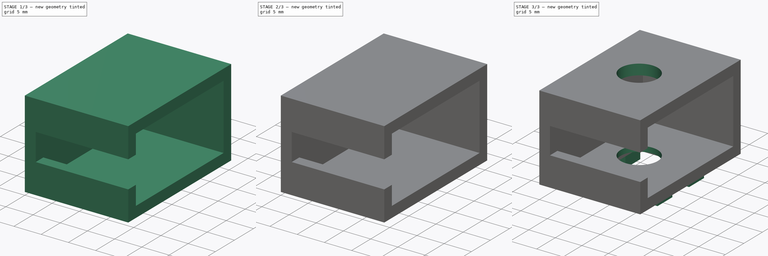
[diagram: build sequence overview — one tinted view per stage of 3, left to right]
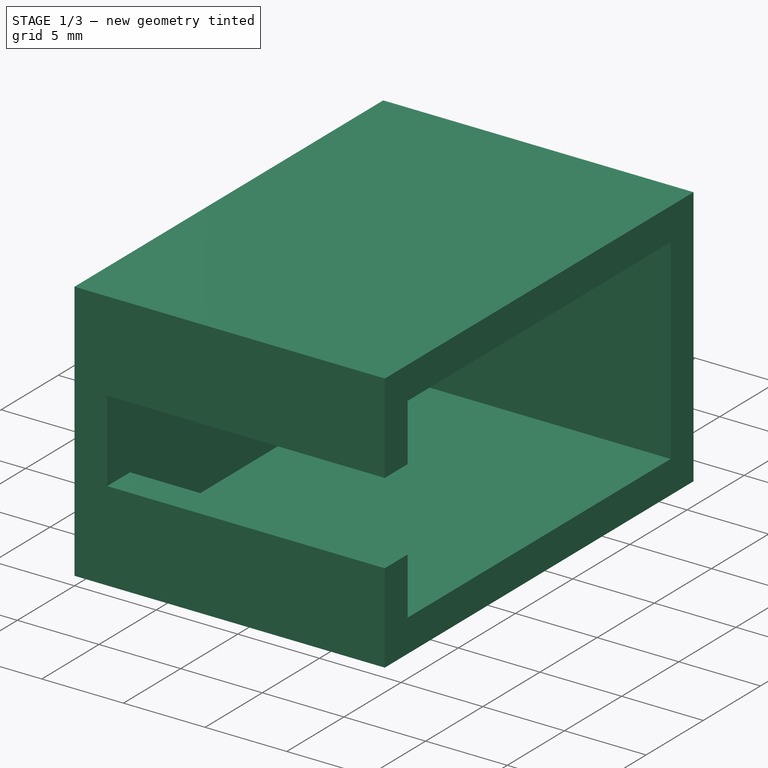
[diagram: stage 1 of 3 — iso view after this stage's code; geometry added in this stage tinted green]
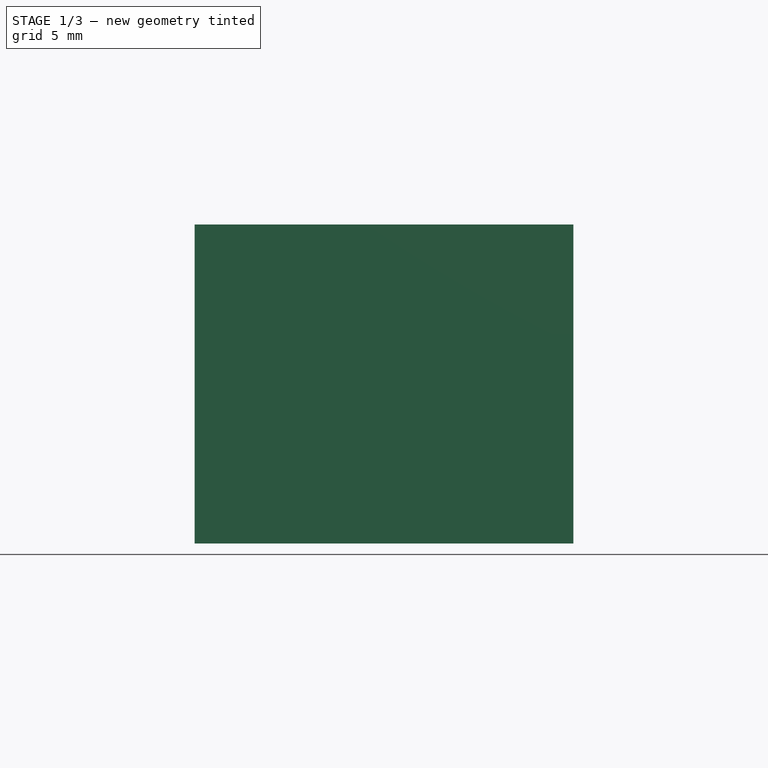
[diagram: stage 1 of 3 — front view after this stage's code; geometry added in this stage tinted green]
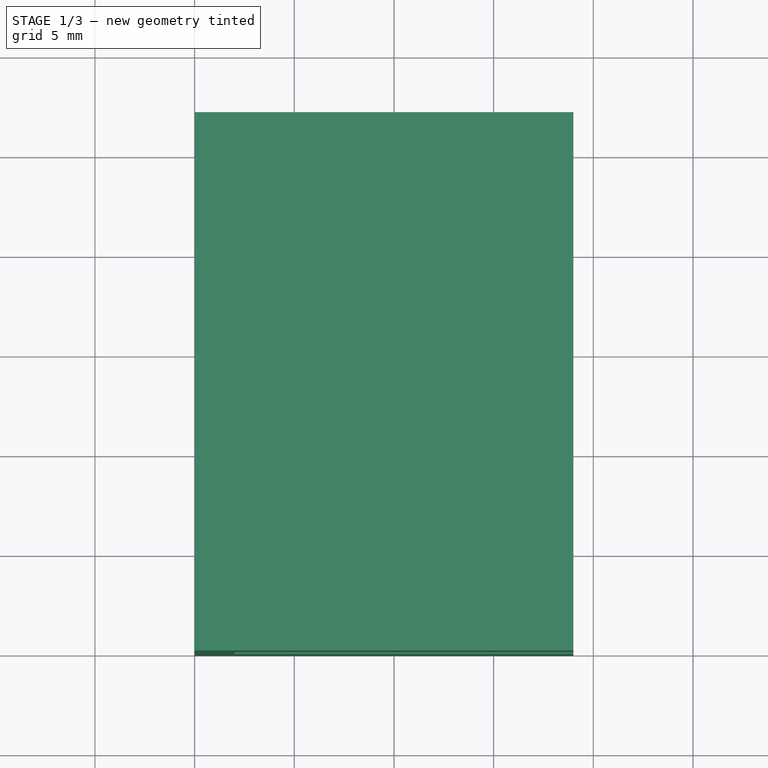
[diagram: stage 1 of 3 — top view after this stage's code; geometry added in this stage tinted green]
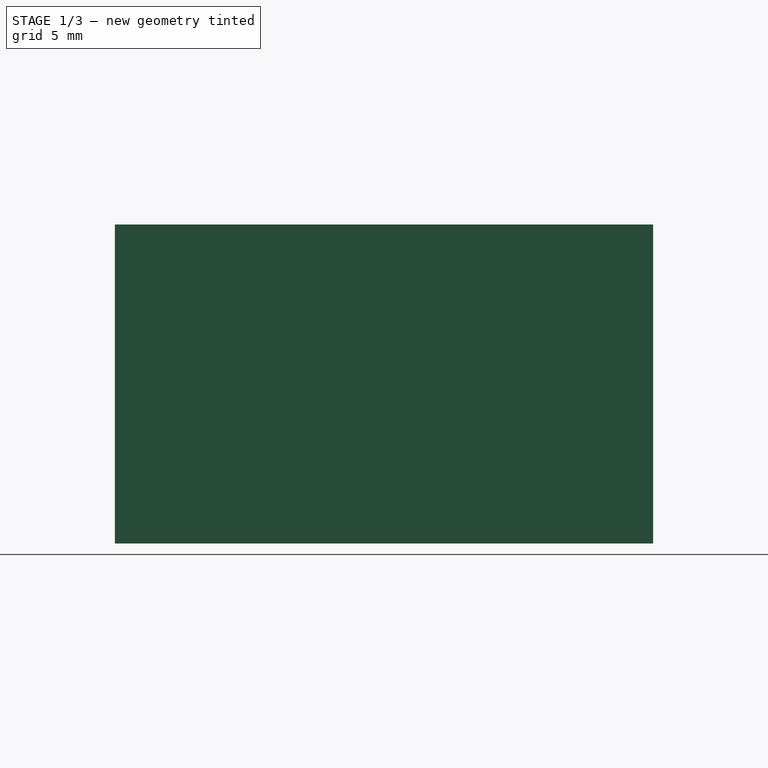
[diagram: stage 1 of 3 — right view after this stage's code; geometry added in this stage tinted green]
FCSTD DOCUMENT  (FreeCAD 0.21R33771 (Git))
Label: BeaterServoMount
License: Creative Commons Attribution-NonCommercial 4.0
LicenseURL: https://creativecommons.org/licenses/by-nc/4.0/
objects: Sketcher::SketchObject×5, PartDesign::Pocket×3, PartDesign::Pad×2, PartDesign::Body×1
note: 16 computed .brp shape members not serialized (recipe doc carries the construction recipe); baked Part::Feature solids carry a one-line shape summary decoded from their .brp

FEATURE [Sketcher::SketchObject] Sketch
  FullyConstrained = true
  MapMode = 5
  Support = -> [XY_Plane]
  sketch-geometry (4):
    g0: LineSegment StartX=0 StartY=0 StartZ=0 EndX=19 EndY=0 EndZ=0
    g1: LineSegment StartX=19 StartY=0 StartZ=0 EndX=19 EndY=27 EndZ=0
    g2: LineSegment StartX=19 StartY=27 StartZ=0 EndX=0 EndY=27 EndZ=0
    g3: LineSegment StartX=0 StartY=27 StartZ=0 EndX=0 EndY=0 EndZ=0
  constraints (11):
    c: Coincident(g0,g1)
    c: Coincident(g1,g2)
    c: Coincident(g2,g3)
    c: Coincident(g3,g0)
    c: Horizontal(g0)
    c: Horizontal(g2)
    c: Vertical(g1)
    c: Vertical(g3)
    c: Coincident(g0,g-1)
    c: DistanceX(g2,g2) = 19
    c: DistanceY(g3,g3) = 27
FEATURE [PartDesign::Pad] Pad
  Direction = (0,0,1)
  Length = 16
  Length2 = 10
  Profile = -> Sketch
  ReferenceAxis = -> Sketch [N_Axis]
  Type = 0
FEATURE [Sketcher::SketchObject] Sketch001
  FullyConstrained = true
  MapMode = 5
  Placement = pos=(19,0,0) rot=(0.57735,0.57735,0.57735;2.0944rad)
  Support = -> [Pad]
  sketch-geometry (8):
    g0: LineSegment StartX=0 StartY=10.5 StartZ=0 EndX=2 EndY=10.5 EndZ=0
    g1: LineSegment StartX=2 StartY=10.5 StartZ=0 EndX=2 EndY=14 EndZ=0
    g2: LineSegment StartX=2 StartY=14 StartZ=0 EndX=25 EndY=14 EndZ=0
    g3: LineSegment StartX=25 StartY=14 StartZ=0 EndX=25 EndY=2 EndZ=0
    g4: LineSegment StartX=25 StartY=2 StartZ=0 EndX=2 EndY=2 EndZ=0
    g5: LineSegment StartX=2 StartY=2 StartZ=0 EndX=2 EndY=5.5 EndZ=0
    g6: LineSegment StartX=2 StartY=5.5 StartZ=0 EndX=0 EndY=5.5 EndZ=0
    g7: LineSegment StartX=0 StartY=5.5 StartZ=0 EndX=0 EndY=10.5 EndZ=0
  constraints (24):
    c: PointOnObject(g0,g-2)
    c: Horizontal(g0)
    c: Coincident(g0,g1)
    c: Vertical(g1)
    c: Coincident(g1,g2)
    c: Horizontal(g2)
    c: Coincident(g2,g3)
    c: Vertical(g3)
    c: Coincident(g3,g4)
    c: Horizontal(g4)
    c: Coincident(g4,g5)
    c: Vertical(g5)
    c: Coincident(g5,g6)
    c: PointOnObject(g6,g-2)
    c: Coincident(g6,g7)
    c: Coincident(g7,g0)
    c: Horizontal(g6)
    c: DistanceX(g2,g2) = 23
    c: DistanceX(g0,g0) = 2
    c: DistanceX(g6,g6) = 2
    c: DistanceY(g3,g3) = 12
    c: DistanceY(g-1,g4) = 2
    c: DistanceY(g6,g0) = 5
    c: Equal(g1,g5)
FEATURE [PartDesign::Pocket] Pocket
  BaseFeature = -> Pad
  Direction = (-1,0,0)
  Length = 17
  Length2 = 5
  Profile = -> Sketch001
  ReferenceAxis = -> Sketch001 [N_Axis]
  Type = 0
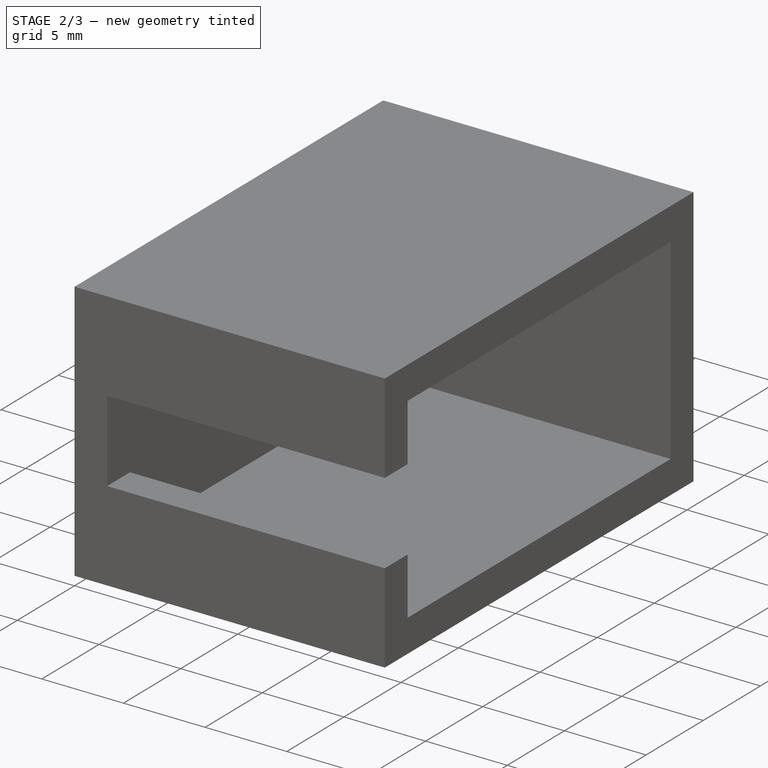
[diagram: stage 2 of 3 — iso view after this stage's code; geometry added in this stage tinted green]
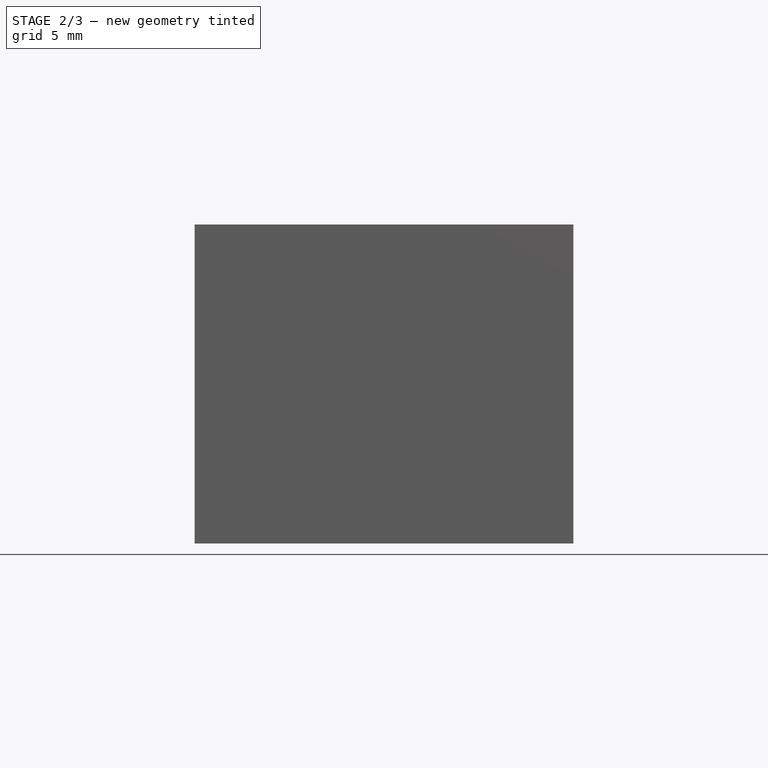
[diagram: stage 2 of 3 — front view after this stage's code; geometry added in this stage tinted green]
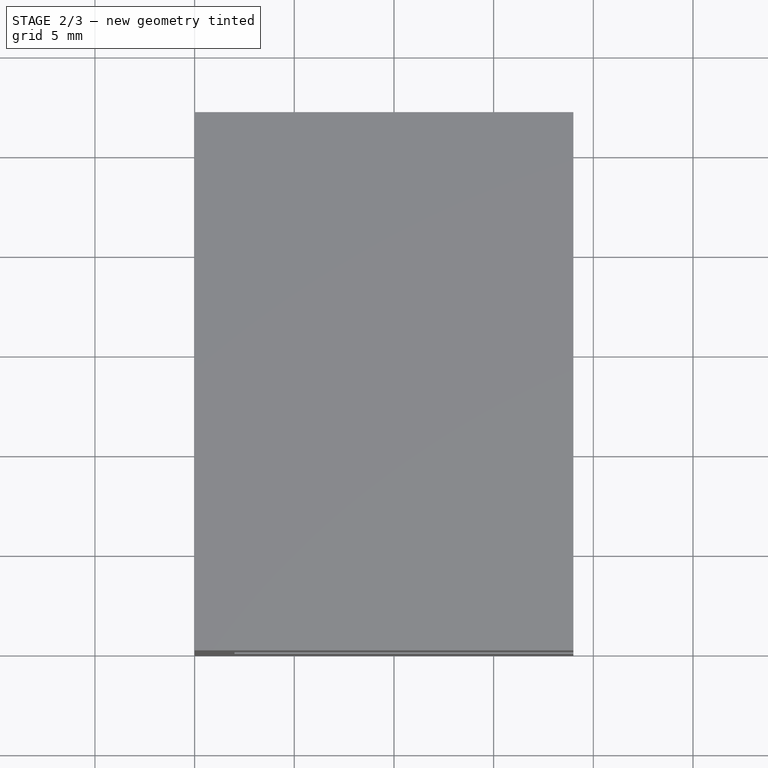
[diagram: stage 2 of 3 — top view after this stage's code; geometry added in this stage tinted green]
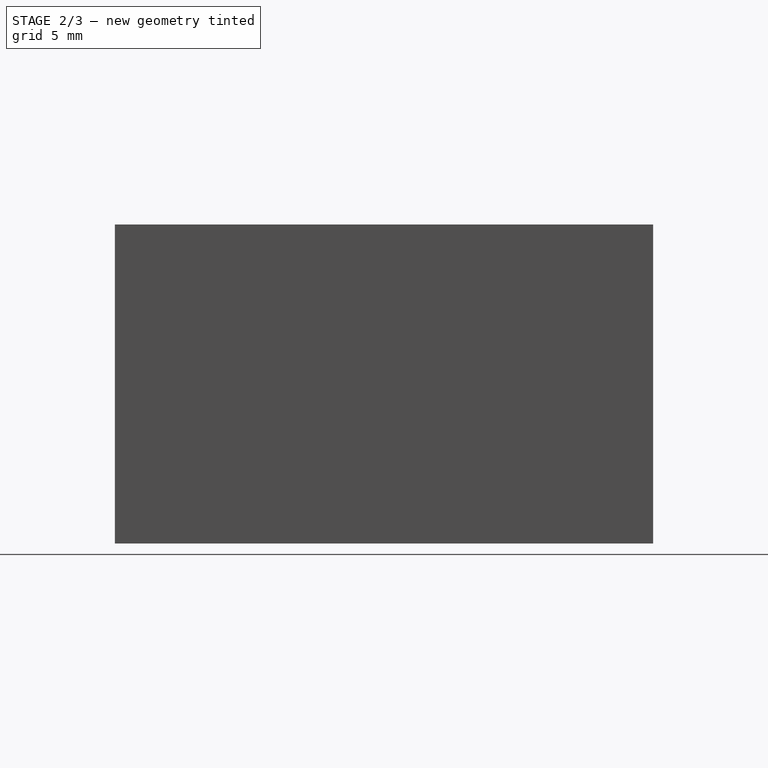
[diagram: stage 2 of 3 — right view after this stage's code; geometry added in this stage tinted green]
FEATURE [Sketcher::SketchObject] Sketch002
  FullyConstrained = true
  MapMode = 5
  Placement = pos=(0,0,0) rot=(1,0,0;3.14159rad)
  Support = -> [Pocket]
  sketch-geometry (4):
    g0: LineSegment StartX=5 StartY=-9 StartZ=0 EndX=13 EndY=-9 EndZ=0
    g1: LineSegment StartX=13 StartY=-9 StartZ=0 EndX=13 EndY=-19 EndZ=0
    g2: LineSegment StartX=13 StartY=-19 StartZ=0 EndX=5 EndY=-19 EndZ=0
    g3: LineSegment StartX=5 StartY=-19 StartZ=0 EndX=5 EndY=-9 EndZ=0
  constraints (12):
    c: Coincident(g0,g1)
    c: Coincident(g1,g2)
    c: Coincident(g2,g3)
    c: Coincident(g3,g0)
    c: Horizontal(g0)
    c: Horizontal(g2)
    c: Vertical(g1)
    c: Vertical(g3)
    c: DistanceX(g2,g2) = 8
    c: DistanceY(g3,g3) = 10
    c: DistanceX(g-1,g0) = 5
    c: DistanceY(g0,g-1) = 9
FEATURE [PartDesign::Pocket] Pocket001
  BaseFeature = -> Pocket
  Direction = (0,0,1)
  Length = 1
  Length2 = 5
  Profile = -> Sketch002
  ReferenceAxis = -> Sketch002 [N_Axis]
  Type = 0
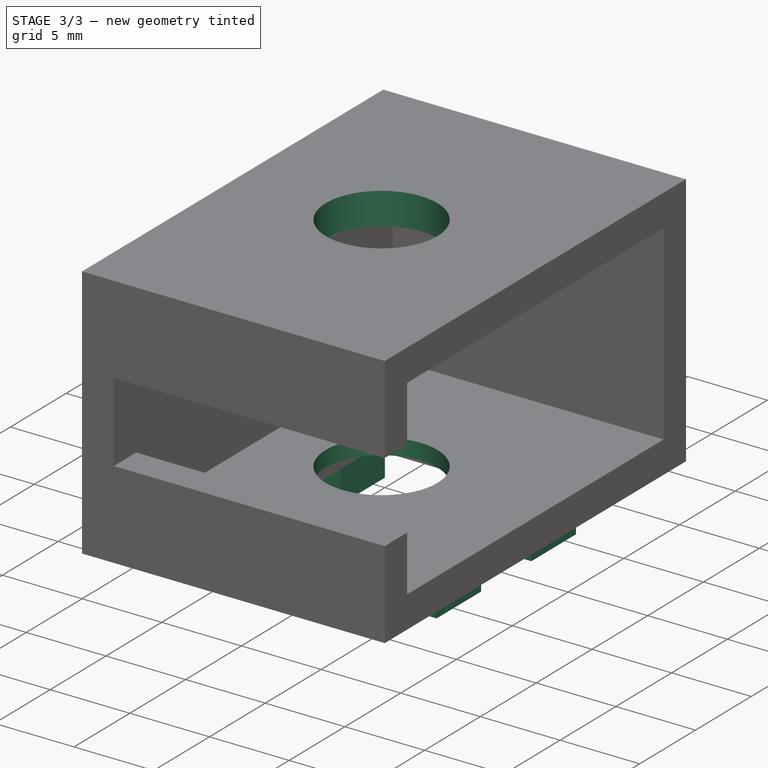
[diagram: stage 3 of 3 — iso view after this stage's code; geometry added in this stage tinted green]
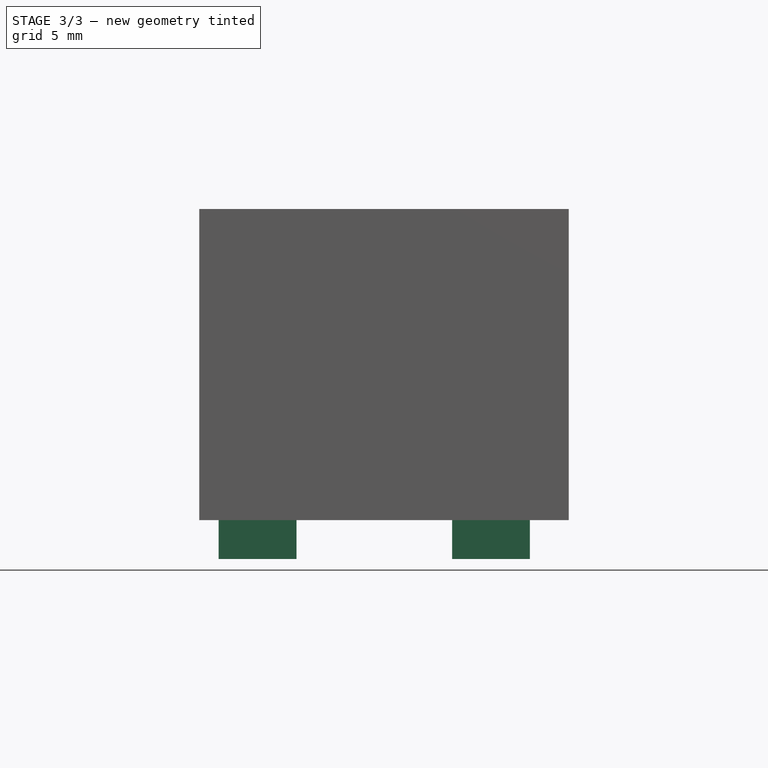
[diagram: stage 3 of 3 — front view after this stage's code; geometry added in this stage tinted green]
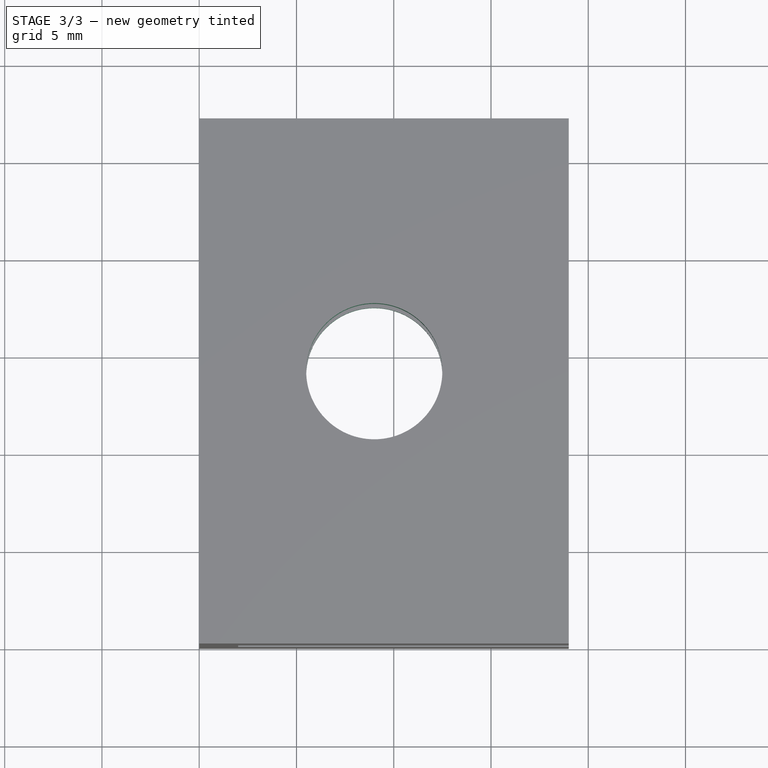
[diagram: stage 3 of 3 — top view after this stage's code; geometry added in this stage tinted green]
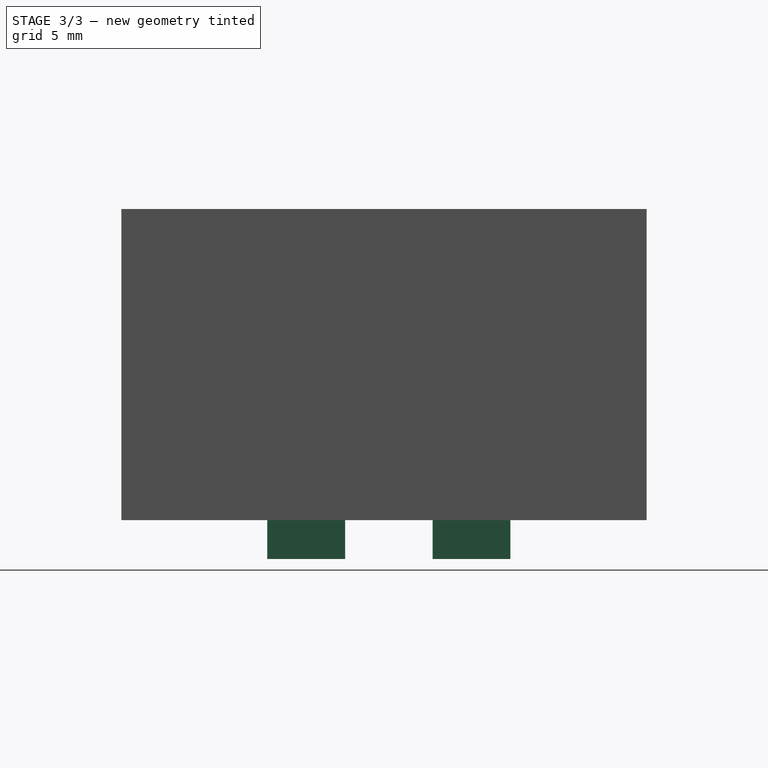
[diagram: stage 3 of 3 — right view after this stage's code; geometry added in this stage tinted green]
FEATURE [Sketcher::SketchObject] Sketch003
  ExternalGeometry = -> [Pocket001]
  FullyConstrained = true
  MapMode = 5
  Placement = pos=(0,0,0) rot=(1,0,0;3.14159rad)
  Support = -> [Pocket001]
  sketch-geometry (16):
    g0: LineSegment StartX=1 StartY=-7.5 StartZ=0 EndX=5 EndY=-7.5 EndZ=0
    g1: LineSegment StartX=5 StartY=-7.5 StartZ=0 EndX=5 EndY=-11.5 EndZ=0
    g2: LineSegment StartX=5 StartY=-11.5 StartZ=0 EndX=1 EndY=-11.5 EndZ=0
    g3: LineSegment StartX=1 StartY=-11.5 StartZ=0 EndX=1 EndY=-7.5 EndZ=0
    g4: LineSegment StartX=13 StartY=-7.5 StartZ=0 EndX=17 EndY=-7.5 EndZ=0
    g5: LineSegment StartX=17 StartY=-7.5 StartZ=0 EndX=17 EndY=-11.5 EndZ=0
    g6: LineSegment StartX=17 StartY=-11.5 StartZ=0 EndX=13 EndY=-11.5 EndZ=0
    g7: LineSegment StartX=13 StartY=-11.5 StartZ=0 EndX=13 EndY=-7.5 EndZ=0
    g8: LineSegment StartX=1 StartY=-16 StartZ=0 EndX=5 EndY=-16 EndZ=0
    g9: LineSegment StartX=5 StartY=-16 StartZ=0 EndX=5 EndY=-20 EndZ=0
    g10: LineSegment StartX=5 StartY=-20 StartZ=0 EndX=1 EndY=-20 EndZ=0
    g11: LineSegment StartX=1 StartY=-20 StartZ=0 EndX=1 EndY=-16 EndZ=0
    g12: LineSegment StartX=13 StartY=-16 StartZ=0 EndX=17 EndY=-16 EndZ=0
    g13: LineSegment StartX=17 StartY=-16 StartZ=0 EndX=17 EndY=-20 EndZ=0
    g14: LineSegment StartX=17 StartY=-20 StartZ=0 EndX=13 EndY=-20 EndZ=0
    g15: LineSegment StartX=13 StartY=-20 StartZ=0 EndX=13 EndY=-16 EndZ=0
  constraints (48):
    c: Coincident(g0,g1)
    c: Coincident(g1,g2)
    c: Coincident(g2,g3)
    c: Coincident(g3,g0)
    c: Horizontal(g0)
    c: Horizontal(g2)
    c: Vertical(g1)
    c: Vertical(g3)
    c: Coincident(g4,g5)
    c: Coincident(g5,g6)
    c: Coincident(g6,g7)
    c: Coincident(g7,g4)
    c: Horizontal(g4)
    c: Horizontal(g6)
    c: Vertical(g5)
    c: Vertical(g7)
    c: Coincident(g8,g9)
    c: Coincident(g9,g10)
    c: Coincident(g10,g11)
    c: Coincident(g11,g8)
    c: Horizontal(g8)
    c: Horizontal(g10)
    c: Vertical(g9)
    c: Vertical(g11)
    c: Coincident(g12,g13)
    c: Coincident(g13,g14)
    c: Coincident(g14,g15)
    c: Coincident(g15,g12)
    c: Horizontal(g12)
    c: Horizontal(g14)
    c: Vertical(g13)
    c: Vertical(g15)
    c: DistanceX(g0,g0) = 4
    c: Equal(g0,g1)
    c: Equal(g0,g4)
    c: Equal(g4,g12)
    c: Equal(g12,g8)
    c: Equal(g1,g5)
    c: Equal(g5,g13)
    c: Equal(g13,g9)
    c: DistanceX(g8,g12) = 8
    c: Horizontal(g12,g8)
    c: Vertical(g6,g12)
    c: Vertical(g1,g8)
    c: Horizontal(g1,g6)
    c: Vertical(g8,g-3)
    c: DistanceY(g8,g2) = 4.5
    c: DistanceY(g0,g-1) = 7.5
FEATURE [PartDesign::Pad] Pad001
  BaseFeature = -> Pocket001
  Direction = (0,0,-1)
  Length = 2
  Length2 = 10
  Profile = -> Sketch003
  ReferenceAxis = -> Sketch003 [N_Axis]
  Type = 0
FEATURE [Sketcher::SketchObject] Sketch004
  FullyConstrained = true
  MapMode = 5
  Placement = pos=(0,0,16) rot=(0,0,1;0rad)
  Support = -> [Pad001]
  sketch-geometry (1):
    g0: Circle CenterX=9 CenterY=14 CenterZ=0 NormalX=0 NormalY=0 NormalZ=1 AngleXU=0 Radius=3.5
  constraints (3):
    c: Diameter(g0) = 7
    c: DistanceX(g-1,g0) = 9
    c: DistanceY(g-1,g0) = 14
FEATURE [PartDesign::Pocket] Pocket002
  BaseFeature = -> Pad001
  Direction = (0,0,-1)
  Length = 5
  Length2 = 5
  Profile = -> Sketch004
  ReferenceAxis = -> Sketch004 [N_Axis]
  Type = 1
FEATURE [PartDesign::Body] Body
  Group = -> [Sketch,Pad,Sketch001,Pocket,Sketch002,Pocket001,Sketch003,Pad001,Sketch004,Pocket002]
  Origin = -> Origin
  Tip = -> Pocket002
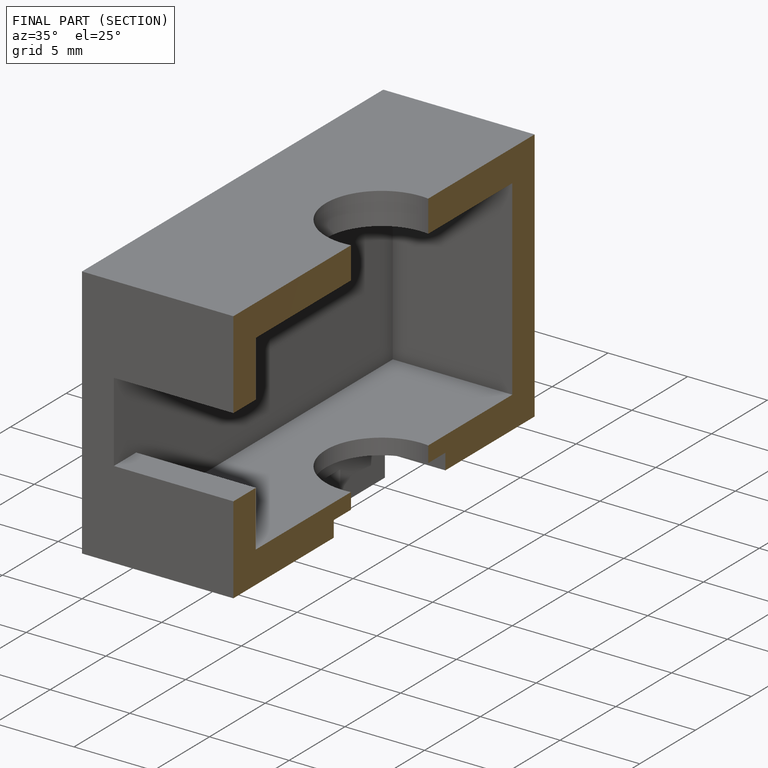
[diagram: finished part — half-section view (interior)]
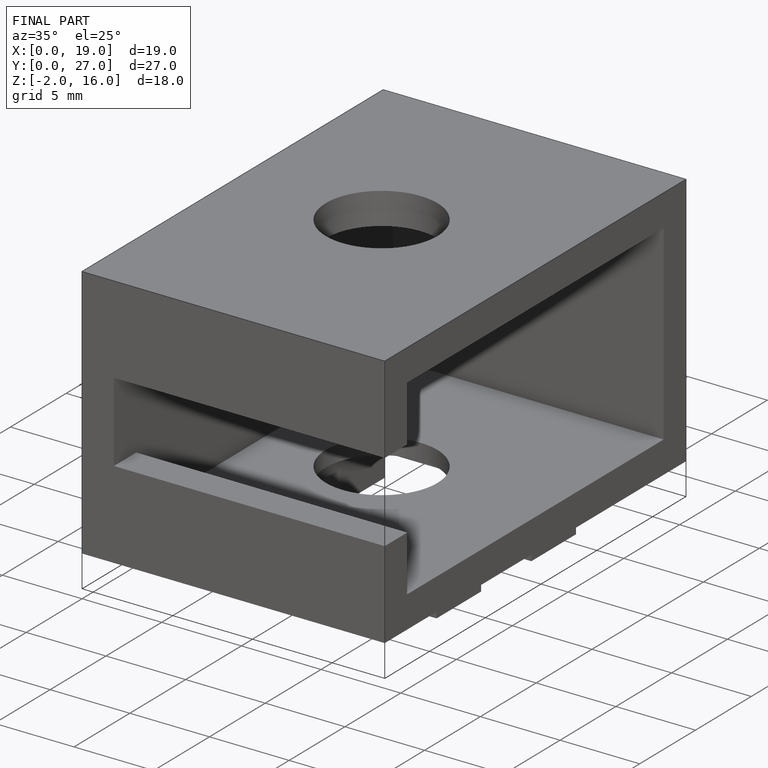
[diagram: finished part — iso view with bounding-box wireframe]
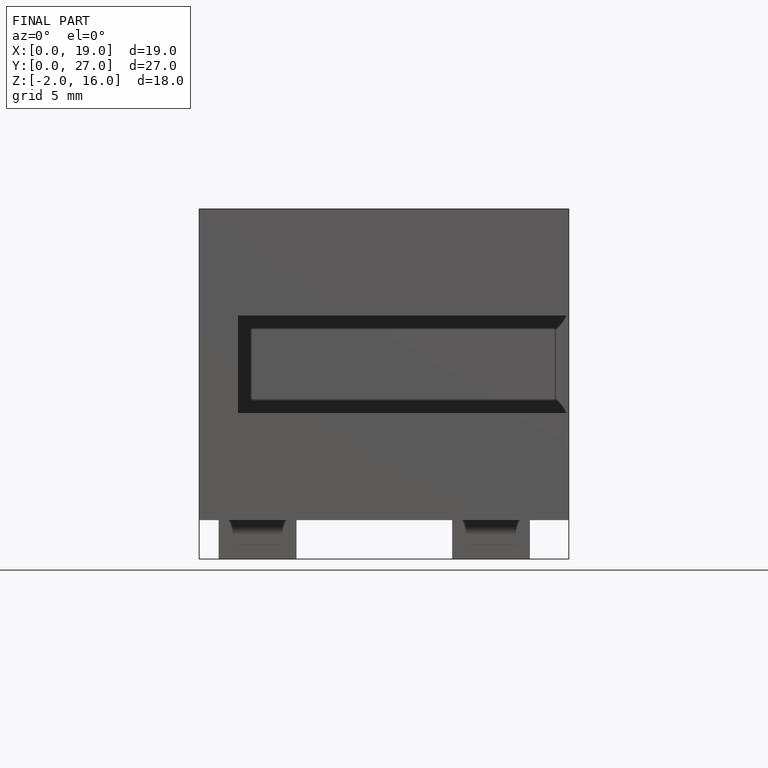
[diagram: finished part — front view with bounding-box wireframe]
